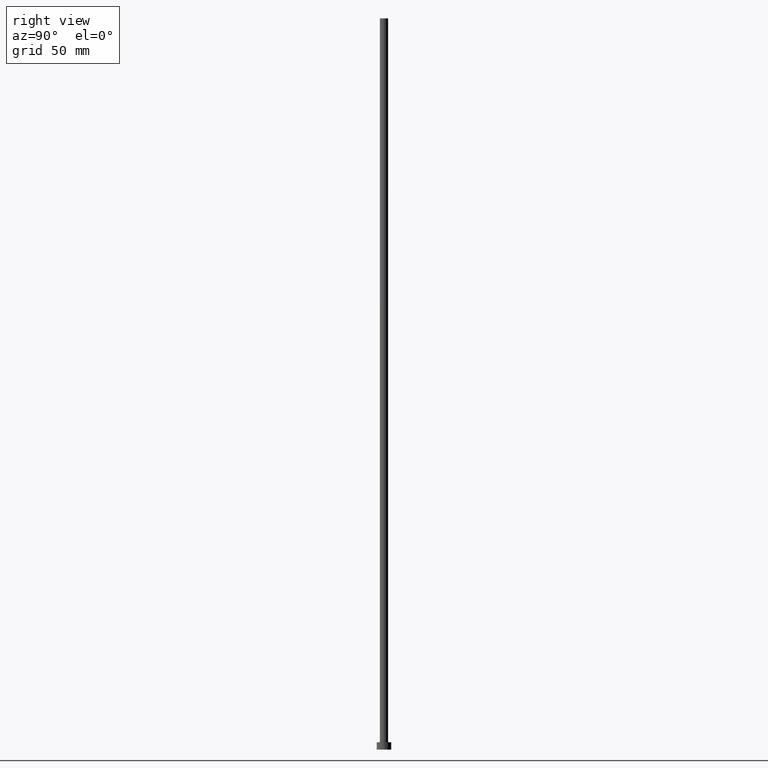
[diagram: clean part render]
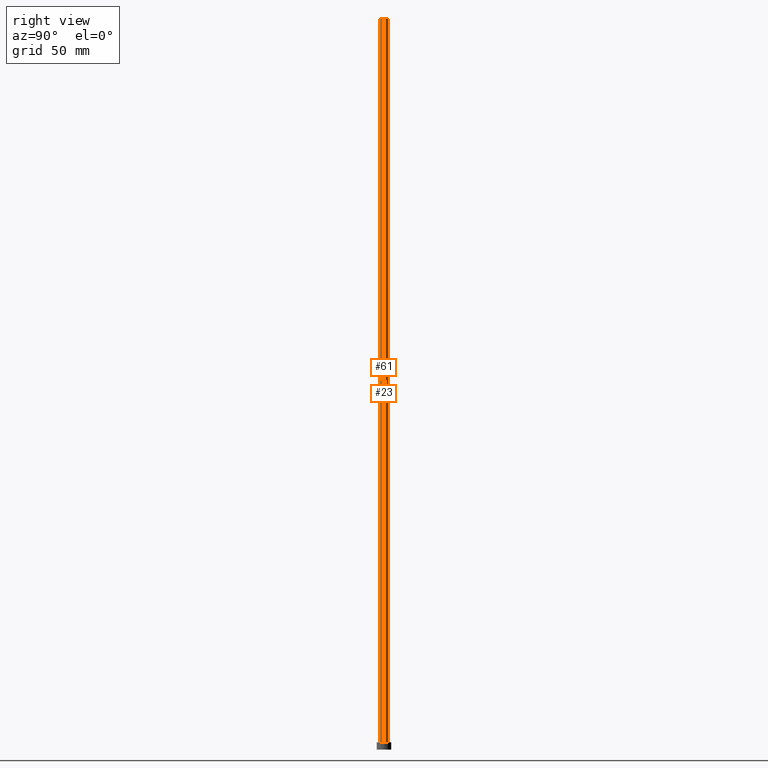
[diagram: same view with one multi-face feature highlighted, each face labeled with its STEP entity id]
A machine part, right view. The highlighted faces form ONE feature: a constant-radius fillet chain: 2 tangent blend faces with common blend radius 2.25 mm. The faces share edges in the B-rep.
Their STEP definitions:
[1] entity #61 (Cylinder):
#1 = FACE_OUTER_BOUND ( 'NONE', #206, .T. ) ;
#8 = CARTESIAN_POINT ( 'NONE',  ( -2.250000000000000000, 0.000000000000000000, 400.0000000000000000 ) ) ;
#24 = CARTESIAN_POINT ( 'NONE',  ( 0.000000000000000000, 0.000000000000000000, 400.0000000000000000 ) ) ;
#28 = DIRECTION ( 'NONE',  ( -0.000000000000000000, -0.000000000000000000, -1.000000000000000000 ) ) ;
#36 = ORIENTED_EDGE ( 'NONE', *, *, #57, .F. ) ;
#40 = DIRECTION ( 'NONE',  ( -0.000000000000000000, -0.000000000000000000, -1.000000000000000000 ) ) ;
#46 = DIRECTION ( 'NONE',  ( -0.000000000000000000, -0.000000000000000000, -1.000000000000000000 ) ) ;
#57 = EDGE_CURVE ( 'NONE', #120, #163, #213, .T. ) ;
#58 = AXIS2_PLACEMENT_3D ( 'NONE', #154, #116, #157 ) ;
#61 = ADVANCED_FACE ( 'NONE', ( #1 ), #79, .T. ) ;
#78 = CARTESIAN_POINT ( 'NONE',  ( 2.250000000000000000, 2.755455298081544285E-16, 400.0000000000000000 ) ) ;
#79 = CYLINDRICAL_SURFACE ( 'NONE', #96, 2.250000000000000000 ) ;
#81 = DIRECTION ( 'NONE',  ( 0.000000000000000000, 0.000000000000000000, 1.000000000000000000 ) ) ;
#82 = ORIENTED_EDGE ( 'NONE', *, *, #243, .T. ) ;
#86 = CARTESIAN_POINT ( 'NONE',  ( 0.000000000000000000, 0.000000000000000000, 4.000000000000000000 ) ) ;
#96 = AXIS2_PLACEMENT_3D ( 'NONE', #24, #40, #160 ) ;
#100 = CARTESIAN_POINT ( 'NONE',  ( -2.250000000000000000, 0.000000000000000000, 4.000000000000000000 ) ) ;
#111 = ORIENTED_EDGE ( 'NONE', *, *, #180, .T. ) ;
#116 = DIRECTION ( 'NONE',  ( 0.000000000000000000, 0.000000000000000000, 1.000000000000000000 ) ) ;
#120 = VERTEX_POINT ( 'NONE', #140 ) ;
#140 = CARTESIAN_POINT ( 'NONE',  ( -2.250000000000000000, 0.000000000000000000, 400.0000000000000000 ) ) ;
#144 = VECTOR ( 'NONE', #28, 1000.000000000000000 ) ;
#154 = CARTESIAN_POINT ( 'NONE',  ( 0.000000000000000000, 0.000000000000000000, 400.0000000000000000 ) ) ;
#157 = DIRECTION ( 'NONE',  ( 1.000000000000000000, 0.000000000000000000, 0.000000000000000000 ) ) ;
#158 = LINE ( 'NONE', #8, #144 ) ;
#160 = DIRECTION ( 'NONE',  ( -1.000000000000000000, 0.000000000000000000, 0.000000000000000000 ) ) ;
#162 = VECTOR ( 'NONE', #46, 1000.000000000000000 ) ;
#163 = VERTEX_POINT ( 'NONE', #78 ) ;
#172 = VERTEX_POINT ( 'NONE', #253 ) ;
#180 = EDGE_CURVE ( 'NONE', #120, #190, #158, .T. ) ;
#182 = EDGE_CURVE ( 'NONE', #163, #172, #223, .T. ) ;
#185 = AXIS2_PLACEMENT_3D ( 'NONE', #86, #81, #237 ) ;
#190 = VERTEX_POINT ( 'NONE', #100 ) ;
#193 = CIRCLE ( 'NONE', #185, 2.250000000000000000 ) ;
#206 = EDGE_LOOP ( 'NONE', ( #248, #36, #111, #82 ) ) ;
#213 = CIRCLE ( 'NONE', #58, 2.250000000000000000 ) ;
#223 = LINE ( 'NONE', #240, #162 ) ;
#237 = DIRECTION ( 'NONE',  ( 1.000000000000000000, 0.000000000000000000, 0.000000000000000000 ) ) ;
#240 = CARTESIAN_POINT ( 'NONE',  ( 2.250000000000000000, 2.755455298081544285E-16, 400.0000000000000000 ) ) ;
#243 = EDGE_CURVE ( 'NONE', #190, #172, #193, .T. ) ;
#248 = ORIENTED_EDGE ( 'NONE', *, *, #182, .F. ) ;
#253 = CARTESIAN_POINT ( 'NONE',  ( 2.250000000000000000, 2.755455298081544285E-16, 4.000000000000000000 ) ) ;
[2] entity #23 (Cylinder):
#8 = CARTESIAN_POINT ( 'NONE',  ( -2.250000000000000000, 0.000000000000000000, 400.0000000000000000 ) ) ;
#23 = ADVANCED_FACE ( 'NONE', ( #73 ), #37, .T. ) ;
#28 = DIRECTION ( 'NONE',  ( -0.000000000000000000, -0.000000000000000000, -1.000000000000000000 ) ) ;
#30 = EDGE_LOOP ( 'NONE', ( #53, #165, #204, #107 ) ) ;
#35 = AXIS2_PLACEMENT_3D ( 'NONE', #94, #179, #177 ) ;
#37 = CYLINDRICAL_SURFACE ( 'NONE', #121, 2.250000000000000000 ) ;
#38 = CIRCLE ( 'NONE', #35, 2.250000000000000000 ) ;
#46 = DIRECTION ( 'NONE',  ( -0.000000000000000000, -0.000000000000000000, -1.000000000000000000 ) ) ;
#53 = ORIENTED_EDGE ( 'NONE', *, *, #101, .F. ) ;
#73 = FACE_OUTER_BOUND ( 'NONE', #30, .T. ) ;
#78 = CARTESIAN_POINT ( 'NONE',  ( 2.250000000000000000, 2.755455298081544285E-16, 400.0000000000000000 ) ) ;
#80 = CARTESIAN_POINT ( 'NONE',  ( 0.000000000000000000, 0.000000000000000000, 400.0000000000000000 ) ) ;
#93 = DIRECTION ( 'NONE',  ( -1.000000000000000000, 0.000000000000000000, 0.000000000000000000 ) ) ;
#94 = CARTESIAN_POINT ( 'NONE',  ( 0.000000000000000000, 0.000000000000000000, 4.000000000000000000 ) ) ;
#100 = CARTESIAN_POINT ( 'NONE',  ( -2.250000000000000000, 0.000000000000000000, 4.000000000000000000 ) ) ;
#101 = EDGE_CURVE ( 'NONE', #163, #120, #106, .T. ) ;
#106 = CIRCLE ( 'NONE', #178, 2.250000000000000000 ) ;
#107 = ORIENTED_EDGE ( 'NONE', *, *, #180, .F. ) ;
#112 = DIRECTION ( 'NONE',  ( -0.000000000000000000, -0.000000000000000000, -1.000000000000000000 ) ) ;
#114 = DIRECTION ( 'NONE',  ( 0.000000000000000000, 0.000000000000000000, 1.000000000000000000 ) ) ;
#120 = VERTEX_POINT ( 'NONE', #140 ) ;
#121 = AXIS2_PLACEMENT_3D ( 'NONE', #188, #112, #93 ) ;
#136 = DIRECTION ( 'NONE',  ( 1.000000000000000000, 0.000000000000000000, 0.000000000000000000 ) ) ;
#140 = CARTESIAN_POINT ( 'NONE',  ( -2.250000000000000000, 0.000000000000000000, 400.0000000000000000 ) ) ;
#144 = VECTOR ( 'NONE', #28, 1000.000000000000000 ) ;
#149 = EDGE_CURVE ( 'NONE', #172, #190, #38, .T. ) ;
#158 = LINE ( 'NONE', #8, #144 ) ;
#162 = VECTOR ( 'NONE', #46, 1000.000000000000000 ) ;
#163 = VERTEX_POINT ( 'NONE', #78 ) ;
#165 = ORIENTED_EDGE ( 'NONE', *, *, #182, .T. ) ;
#172 = VERTEX_POINT ( 'NONE', #253 ) ;
#177 = DIRECTION ( 'NONE',  ( 1.000000000000000000, 0.000000000000000000, 0.000000000000000000 ) ) ;
#178 = AXIS2_PLACEMENT_3D ( 'NONE', #80, #114, #136 ) ;
#179 = DIRECTION ( 'NONE',  ( 0.000000000000000000, 0.000000000000000000, 1.000000000000000000 ) ) ;
#180 = EDGE_CURVE ( 'NONE', #120, #190, #158, .T. ) ;
#182 = EDGE_CURVE ( 'NONE', #163, #172, #223, .T. ) ;
#188 = CARTESIAN_POINT ( 'NONE',  ( 0.000000000000000000, 0.000000000000000000, 400.0000000000000000 ) ) ;
#190 = VERTEX_POINT ( 'NONE', #100 ) ;
#204 = ORIENTED_EDGE ( 'NONE', *, *, #149, .T. ) ;
#223 = LINE ( 'NONE', #240, #162 ) ;
#240 = CARTESIAN_POINT ( 'NONE',  ( 2.250000000000000000, 2.755455298081544285E-16, 400.0000000000000000 ) ) ;
#253 = CARTESIAN_POINT ( 'NONE',  ( 2.250000000000000000, 2.755455298081544285E-16, 4.000000000000000000 ) ) ;